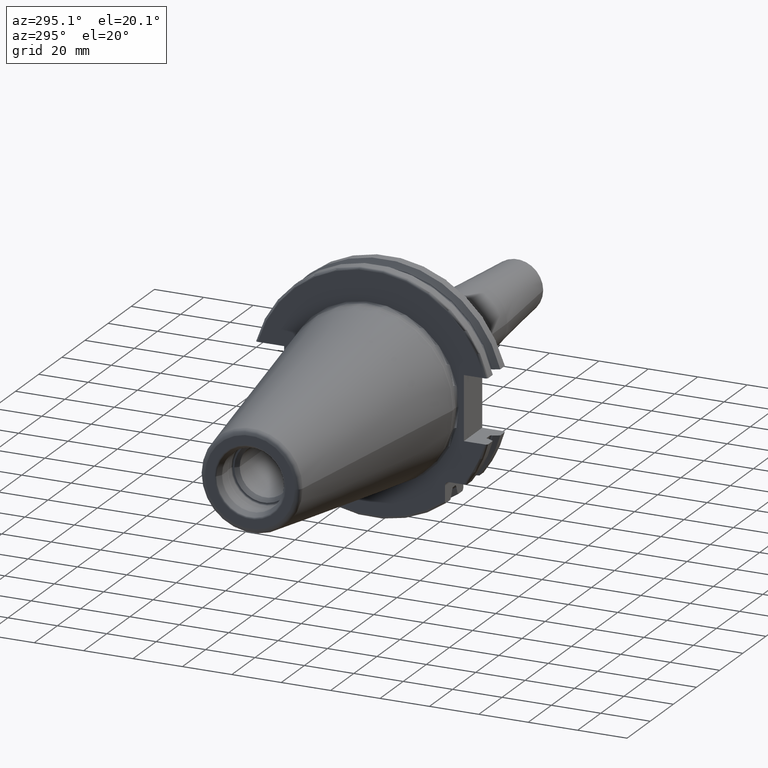
[diagram: clean part render]
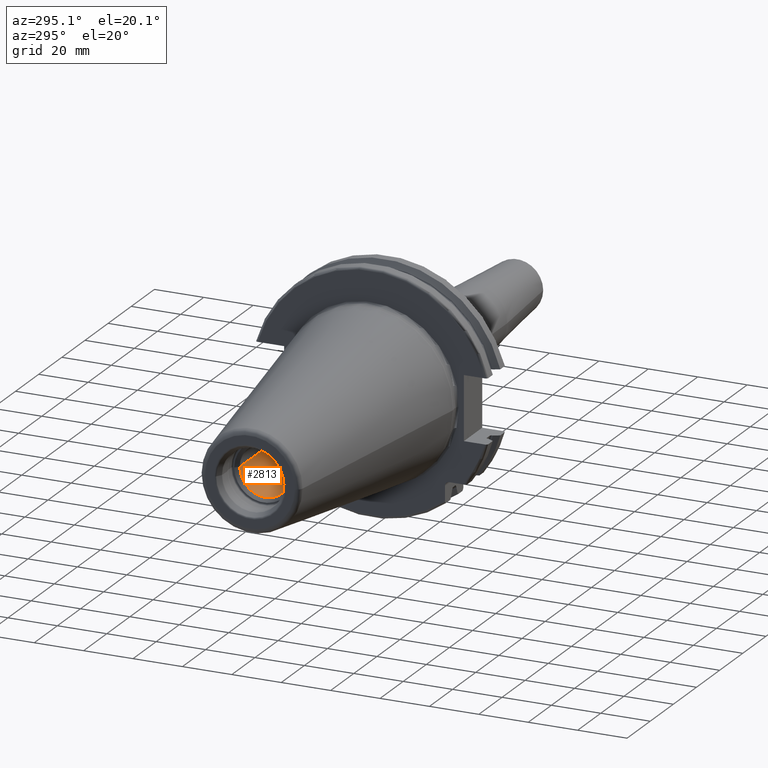
[diagram: same view with one face highlighted and labeled with its STEP entity id]
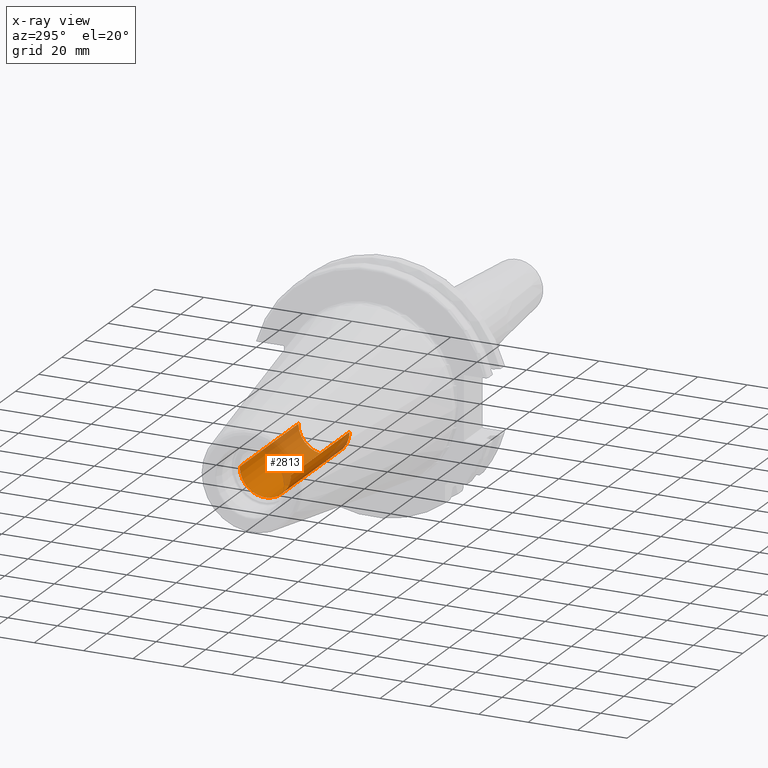
[diagram: x-ray of the same camera — body ghosted, the highlighted face saturated]
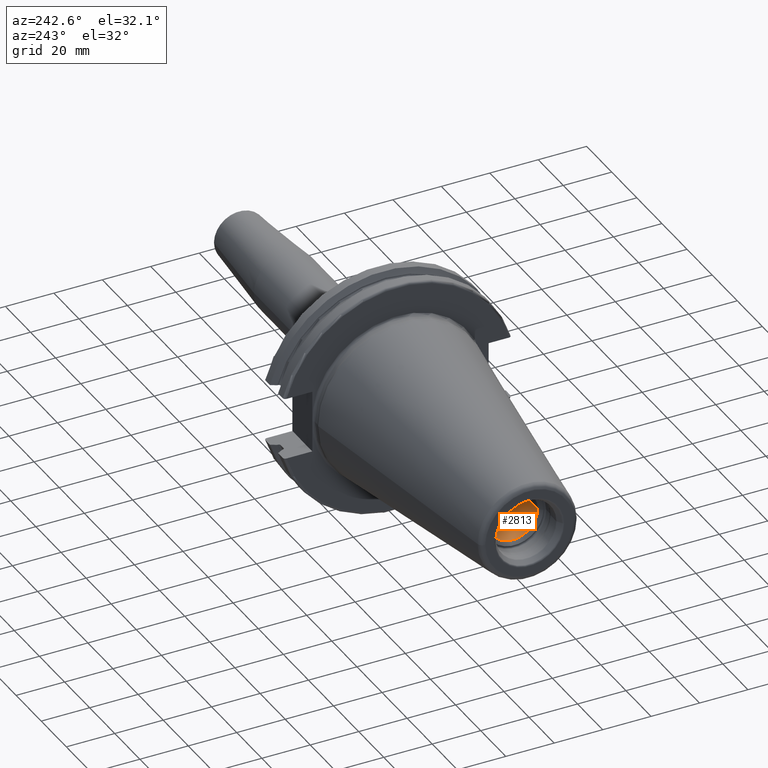
[diagram: same view with one face highlighted and labeled with its STEP entity id]
A machine part, auxiliary view. The second image highlights one B-rep face of the part: STEP entity #2813.
The next image is the same camera in x-ray: the body ghosted, the highlighted face saturated — about 45% of this face is hidden behind the body in this view.
A second angle (auxiliary view) of the same face is appended — the face is thin or edge-on in the first view.
In plain terms, the highlighted cylindrical surface (edge-blend (fillet) strip) has radius 10.375 mm, axis along (1, 0, 0).
Its self-contained STEP definition (entity closure, byte-faithful):
#1171=CARTESIAN_POINT('',(-8.835E1,0.E0,0.E0));
#1172=DIRECTION('',(-1.E0,0.E0,0.E0));
#1173=DIRECTION('',(0.E0,1.E0,0.E0));
#1174=AXIS2_PLACEMENT_3D('',#1171,#1172,#1173);
#1180=DIRECTION('',(-1.E0,0.E0,0.E0));
#1181=VECTOR('',#1180,5.075E1);
#1182=CARTESIAN_POINT('',(-3.76E1,1.0375E1,0.E0));
#1183=LINE('',#1182,#1181);
#1184=CARTESIAN_POINT('',(-3.76E1,0.E0,0.E0));
#1185=DIRECTION('',(-1.E0,0.E0,0.E0));
#1186=DIRECTION('',(0.E0,1.E0,0.E0));
#1187=AXIS2_PLACEMENT_3D('',#1184,#1185,#1186);
#1189=DIRECTION('',(-1.E0,0.E0,0.E0));
#1190=VECTOR('',#1189,5.075E1);
#1191=CARTESIAN_POINT('',(-3.76E1,-1.0375E1,0.E0));
#1192=LINE('',#1191,#1190);
#1225=CARTESIAN_POINT('',(-3.76E1,1.0375E1,0.E0));
#1227=VERTEX_POINT('',#1225);
#1228=CARTESIAN_POINT('',(-8.835E1,1.0375E1,0.E0));
#1229=VERTEX_POINT('',#1228);
#1248=CARTESIAN_POINT('',(-3.76E1,-1.0375E1,0.E0));
#1249=VERTEX_POINT('',#1248);
#1250=CARTESIAN_POINT('',(-8.835E1,-1.0375E1,0.E0));
#1251=VERTEX_POINT('',#1250);
#2799=CARTESIAN_POINT('',(-1.051116964461E2,0.E0,0.E0));
#2800=DIRECTION('',(1.E0,0.E0,0.E0));
#2801=DIRECTION('',(0.E0,-1.E0,0.E0));
#2802=AXIS2_PLACEMENT_3D('',#2799,#2800,#2801);
#2803=CYLINDRICAL_SURFACE('',#2802,1.0375E1);
#2805=ORIENTED_EDGE('',*,*,#2804,.F.);
#2807=ORIENTED_EDGE('',*,*,#2806,.T.);
#2809=ORIENTED_EDGE('',*,*,#2808,.T.);
#2810=ORIENTED_EDGE('',*,*,#2792,.F.);
#2811=EDGE_LOOP('',(#2805,#2807,#2809,#2810));
#2812=FACE_OUTER_BOUND('',#2811,.F.);
#2813=ADVANCED_FACE('',(#2812),#2803,.F.);
#1175=CIRCLE('',#1174,1.0375E1);
#1188=CIRCLE('',#1187,1.0375E1);
#2792=EDGE_CURVE('',#1229,#1251,#1175,.T.);
#2804=EDGE_CURVE('',#1227,#1229,#1183,.T.);
#2806=EDGE_CURVE('',#1227,#1249,#1188,.T.);
#2808=EDGE_CURVE('',#1249,#1251,#1192,.T.);